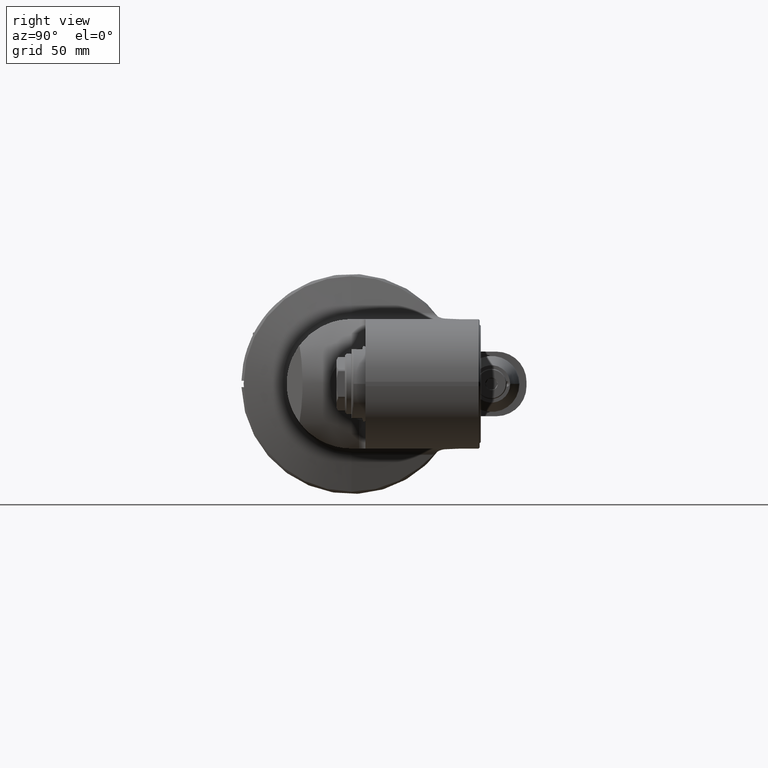
[diagram: clean part render]
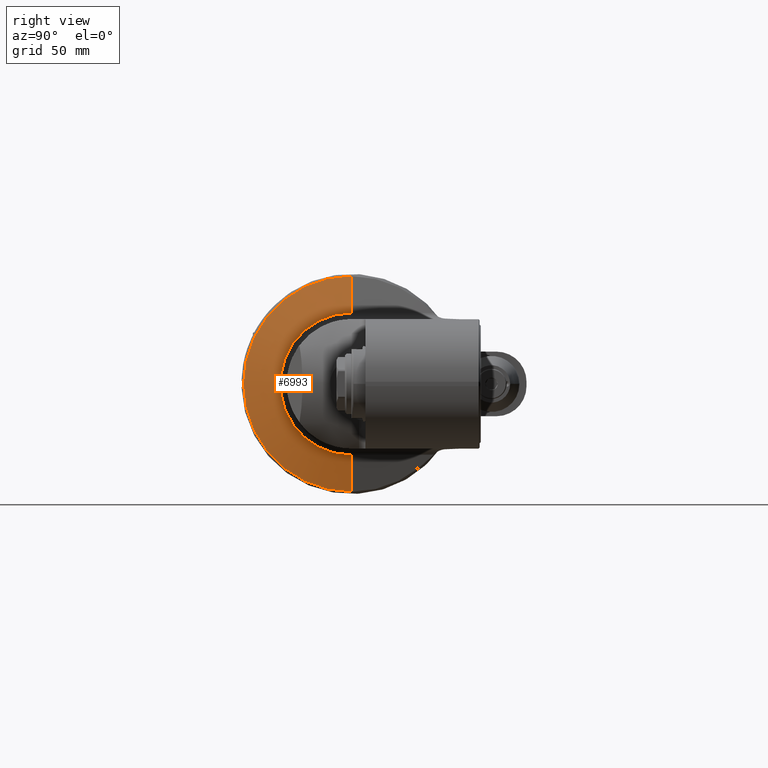
[diagram: same view with one face highlighted and labeled with its STEP entity id]
A machine part, right view. The second image highlights one B-rep face of the part: STEP entity #6993.
In plain terms, the highlighted conical surface has half-angle 75 deg.
Its self-contained STEP definition (entity closure, byte-faithful):
#579=CONICAL_SURFACE('',#7503,41.48236190979,1.30899693899575);
#670=FACE_OUTER_BOUND('',#1110,.T.);
#1110=EDGE_LOOP('',(#4754,#4755,#4756,#4757));
#1604=LINE('',#10362,#2104);
#1605=LINE('',#10363,#2105);
#2104=VECTOR('',#8314,17.6362156562904);
#2105=VECTOR('',#8315,17.6362156562904);
#2606=CIRCLE('',#7485,50.);
#2616=CIRCLE('',#7504,32.96472381959);
#2945=VERTEX_POINT('',#10323);
#2946=VERTEX_POINT('',#10325);
#2956=VERTEX_POINT('',#10359);
#2957=VERTEX_POINT('',#10360);
#3647=EDGE_CURVE('',#2946,#2945,#2606,.T.);
#3663=EDGE_CURVE('',#2956,#2957,#2616,.T.);
#3664=EDGE_CURVE('',#2956,#2946,#1604,.T.);
#3665=EDGE_CURVE('',#2945,#2957,#1605,.T.);
#4754=ORIENTED_EDGE('',*,*,#3663,.F.);
#4755=ORIENTED_EDGE('',*,*,#3664,.T.);
#4756=ORIENTED_EDGE('',*,*,#3647,.T.);
#4757=ORIENTED_EDGE('',*,*,#3665,.T.);
#6993=ADVANCED_FACE('',(#670),#579,.T.);
#7485=AXIS2_PLACEMENT_3D('',#10326,#8269,#8270);
#7503=AXIS2_PLACEMENT_3D('',#10358,#8310,#8311);
#7504=AXIS2_PLACEMENT_3D('',#10361,#8312,#8313);
#8269=DIRECTION('center_axis',(1.,0.,0.));
#8270=DIRECTION('ref_axis',(0.,-4.244886712573E-14,1.));
#8310=DIRECTION('center_axis',(-1.,0.,0.));
#8311=DIRECTION('ref_axis',(0.,0.,1.));
#8312=DIRECTION('center_axis',(1.,0.,0.));
#8313=DIRECTION('ref_axis',(0.,-1.,0.));
#8314=DIRECTION('',(-0.258819045102493,-3.9731383522489E-14,0.965925826289076));
#8315=DIRECTION('',(0.258819045102493,4.1256889903369E-14,0.965925826289076));
#10323=CARTESIAN_POINT('',(32.91145416162,0.,-50.));
#10325=CARTESIAN_POINT('',(32.91145416162,-2.122443356287E-12,50.));
#10326=CARTESIAN_POINT('Origin',(32.91145416162,0.,0.));
#10358=CARTESIAN_POINT('Origin',(35.19374840931,0.,0.));
#10359=CARTESIAN_POINT('',(37.476042657,-3.53340778345E-14,32.96472381959));
#10360=CARTESIAN_POINT('',(37.476042657,0.,-32.96472381959));
#10361=CARTESIAN_POINT('Origin',(37.476042657,0.,0.));
#10362=CARTESIAN_POINT('',(37.476042657,-1.085202663415E-14,32.96472381959));
#10363=CARTESIAN_POINT('',(32.91145416162,-7.243251704225E-13,-50.));